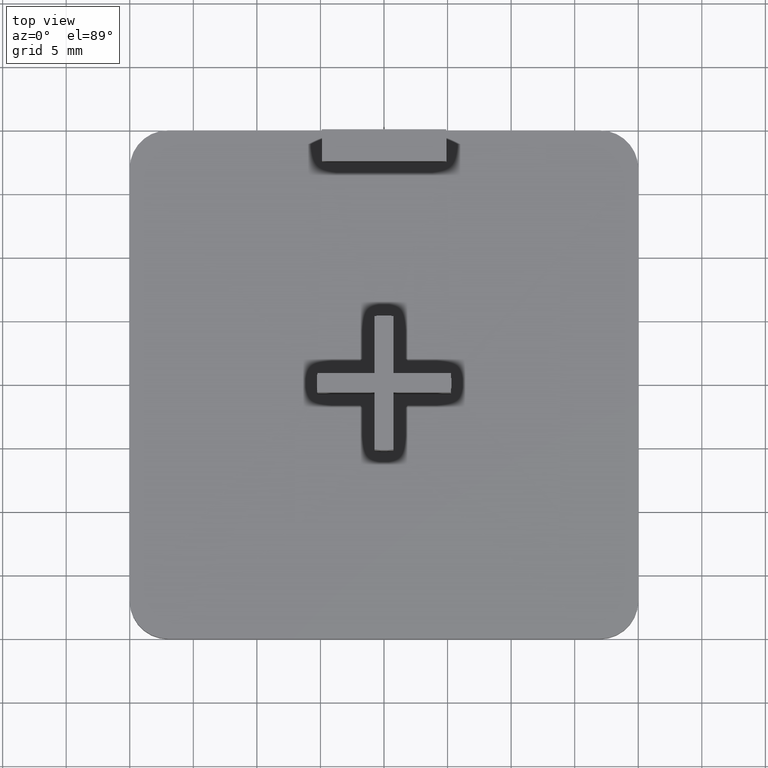
[diagram: clean part render]
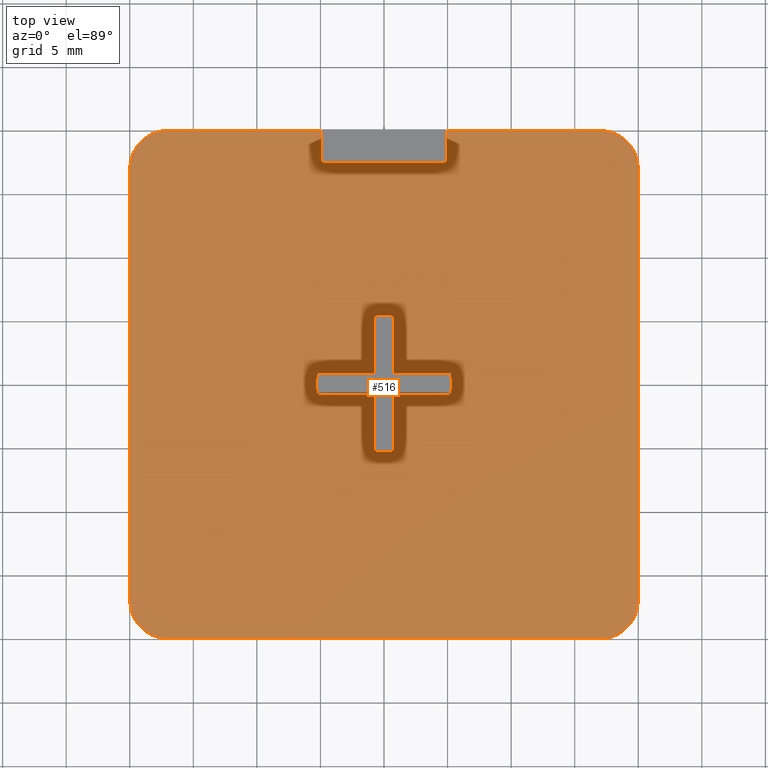
[diagram: same view with one face highlighted and labeled with its STEP entity id]
A machine part, top view. The second image highlights one B-rep face of the part: STEP entity #516.
In plain terms, the highlighted planar face has unit normal (0, 0, 1).
Its self-contained STEP definition (entity closure, byte-faithful):
#15=FACE_BOUND('',#94,.T.);
#16=CIRCLE('',#521,5.3);
#18=CIRCLE('',#526,5.3);
#20=CIRCLE('',#531,5.29999999999997);
#22=CIRCLE('',#536,5.3);
#28=CIRCLE('',#551,3.00000000000001);
#29=CIRCLE('',#554,3.);
#30=CIRCLE('',#557,3.);
#31=CIRCLE('',#560,3.00000000000001);
#66=FACE_OUTER_BOUND('',#93,.T.);
#93=EDGE_LOOP('',(#447,#448,#449,#450,#451,#452,#453,#454,#455,#456,#457,
#458));
#94=EDGE_LOOP('',(#459,#460,#461,#462,#463,#464,#465,#466,#467,#468,#469,
#470));
#95=LINE('',#710,#151);
#100=LINE('',#724,#156);
#103=LINE('',#730,#159);
#107=LINE('',#742,#163);
#110=LINE('',#748,#166);
#114=LINE('',#760,#170);
#117=LINE('',#766,#173);
#121=LINE('',#777,#177);
#123=LINE('',#783,#179);
#127=LINE('',#791,#183);
#130=LINE('',#797,#186);
#136=LINE('',#809,#192);
#137=LINE('',#811,#193);
#143=LINE('',#833,#199);
#146=LINE('',#841,#202);
#149=LINE('',#849,#205);
#151=VECTOR('',#566,4.49666560779321);
#156=VECTOR('',#579,4.49666560779319);
#159=VECTOR('',#584,4.49666560779321);
#163=VECTOR('',#596,4.4966656077932);
#166=VECTOR('',#601,4.49666560779318);
#170=VECTOR('',#613,4.49666560779319);
#173=VECTOR('',#618,4.49666560779321);
#177=VECTOR('',#630,4.49666560779321);
#179=VECTOR('',#636,9.8);
#183=VECTOR('',#642,2.50000000000001);
#186=VECTOR('',#647,2.50000000000001);
#192=VECTOR('',#657,12.1);
#193=VECTOR('',#658,12.1);
#199=VECTOR('',#680,34.);
#202=VECTOR('',#689,34.);
#205=VECTOR('',#698,34.);
#207=VERTEX_POINT('',#708);
#208=VERTEX_POINT('',#709);
#211=VERTEX_POINT('',#717);
#213=VERTEX_POINT('',#723);
#215=VERTEX_POINT('',#729);
#217=VERTEX_POINT('',#735);
#219=VERTEX_POINT('',#741);
#221=VERTEX_POINT('',#747);
#223=VERTEX_POINT('',#753);
#225=VERTEX_POINT('',#759);
#227=VERTEX_POINT('',#765);
#229=VERTEX_POINT('',#771);
#231=VERTEX_POINT('',#781);
#232=VERTEX_POINT('',#782);
#235=VERTEX_POINT('',#790);
#237=VERTEX_POINT('',#796);
#241=VERTEX_POINT('',#807);
#242=VERTEX_POINT('',#810);
#249=VERTEX_POINT('',#828);
#250=VERTEX_POINT('',#832);
#251=VERTEX_POINT('',#836);
#252=VERTEX_POINT('',#840);
#253=VERTEX_POINT('',#844);
#254=VERTEX_POINT('',#848);
#255=EDGE_CURVE('',#207,#208,#95,.T.);
#259=EDGE_CURVE('',#211,#207,#16,.T.);
#262=EDGE_CURVE('',#213,#211,#100,.T.);
#265=EDGE_CURVE('',#215,#213,#103,.T.);
#268=EDGE_CURVE('',#217,#215,#18,.T.);
#271=EDGE_CURVE('',#219,#217,#107,.T.);
#274=EDGE_CURVE('',#208,#221,#110,.T.);
#277=EDGE_CURVE('',#221,#223,#20,.T.);
#280=EDGE_CURVE('',#223,#225,#114,.T.);
#283=EDGE_CURVE('',#225,#227,#117,.T.);
#286=EDGE_CURVE('',#227,#229,#22,.T.);
#289=EDGE_CURVE('',#229,#219,#121,.T.);
#291=EDGE_CURVE('',#231,#232,#123,.T.);
#295=EDGE_CURVE('',#235,#231,#127,.T.);
#298=EDGE_CURVE('',#232,#237,#130,.T.);
#304=EDGE_CURVE('',#237,#241,#136,.T.);
#305=EDGE_CURVE('',#242,#235,#137,.T.);
#314=EDGE_CURVE('',#249,#242,#28,.T.);
#316=EDGE_CURVE('',#250,#249,#143,.T.);
#318=EDGE_CURVE('',#251,#250,#29,.T.);
#320=EDGE_CURVE('',#252,#251,#146,.T.);
#322=EDGE_CURVE('',#253,#252,#30,.T.);
#324=EDGE_CURVE('',#254,#253,#149,.T.);
#326=EDGE_CURVE('',#241,#254,#31,.T.);
#447=ORIENTED_EDGE('',*,*,#298,.T.);
#448=ORIENTED_EDGE('',*,*,#304,.T.);
#449=ORIENTED_EDGE('',*,*,#326,.T.);
#450=ORIENTED_EDGE('',*,*,#324,.T.);
#451=ORIENTED_EDGE('',*,*,#322,.T.);
#452=ORIENTED_EDGE('',*,*,#320,.T.);
#453=ORIENTED_EDGE('',*,*,#318,.T.);
#454=ORIENTED_EDGE('',*,*,#316,.T.);
#455=ORIENTED_EDGE('',*,*,#314,.T.);
#456=ORIENTED_EDGE('',*,*,#305,.T.);
#457=ORIENTED_EDGE('',*,*,#295,.T.);
#458=ORIENTED_EDGE('',*,*,#291,.T.);
#459=ORIENTED_EDGE('',*,*,#271,.T.);
#460=ORIENTED_EDGE('',*,*,#268,.T.);
#461=ORIENTED_EDGE('',*,*,#265,.T.);
#462=ORIENTED_EDGE('',*,*,#262,.T.);
#463=ORIENTED_EDGE('',*,*,#259,.T.);
#464=ORIENTED_EDGE('',*,*,#255,.T.);
#465=ORIENTED_EDGE('',*,*,#274,.T.);
#466=ORIENTED_EDGE('',*,*,#277,.T.);
#467=ORIENTED_EDGE('',*,*,#280,.T.);
#468=ORIENTED_EDGE('',*,*,#283,.T.);
#469=ORIENTED_EDGE('',*,*,#286,.T.);
#470=ORIENTED_EDGE('',*,*,#289,.T.);
#489=PLANE('',#561);
#516=ADVANCED_FACE('',(#66,#15),#489,.T.);
#521=AXIS2_PLACEMENT_3D('',#718,#572,#573);
#526=AXIS2_PLACEMENT_3D('',#736,#589,#590);
#531=AXIS2_PLACEMENT_3D('',#754,#606,#607);
#536=AXIS2_PLACEMENT_3D('',#772,#623,#624);
#551=AXIS2_PLACEMENT_3D('',#829,#675,#676);
#554=AXIS2_PLACEMENT_3D('',#837,#684,#685);
#557=AXIS2_PLACEMENT_3D('',#845,#693,#694);
#560=AXIS2_PLACEMENT_3D('',#852,#702,#703);
#561=AXIS2_PLACEMENT_3D('',#853,#704,#705);
#566=DIRECTION('',(-1.,-2.61713124512323E-14,0.));
#572=DIRECTION('center_axis',(0.,0.,-1.));
#573=DIRECTION('ref_axis',(0.989936907130796,-0.141509433962242,0.));
#579=DIRECTION('',(1.,0.,0.));
#584=DIRECTION('',(2.96279008881876E-15,-1.,0.));
#589=DIRECTION('center_axis',(0.,0.,-1.));
#590=DIRECTION('ref_axis',(0.141509433962262,0.989936907130793,0.));
#596=DIRECTION('',(0.,1.,0.));
#601=DIRECTION('',(0.,-1.,0.));
#606=DIRECTION('center_axis',(0.,0.,-1.));
#607=DIRECTION('ref_axis',(-0.141509433962248,-0.989936907130795,0.));
#613=DIRECTION('',(-1.97519339254584E-14,1.,0.));
#618=DIRECTION('',(-1.,0.,0.));
#623=DIRECTION('center_axis',(0.,0.,-1.));
#624=DIRECTION('ref_axis',(-0.989936907130793,0.141509433962264,0.));
#630=DIRECTION('',(1.,0.,0.));
#636=DIRECTION('',(-1.,0.,0.));
#642=DIRECTION('',(5.32907051820073E-15,-1.,0.));
#647=DIRECTION('',(0.,1.,0.));
#657=DIRECTION('',(-1.,0.,0.));
#658=DIRECTION('',(-1.,0.,0.));
#675=DIRECTION('center_axis',(0.,0.,1.));
#676=DIRECTION('ref_axis',(1.,0.,0.));
#680=DIRECTION('',(2.61228946970625E-16,1.,0.));
#684=DIRECTION('center_axis',(0.,0.,1.));
#685=DIRECTION('ref_axis',(1.77635683940025E-14,-1.,0.));
#689=DIRECTION('',(1.,0.,0.));
#693=DIRECTION('center_axis',(0.,0.,1.));
#694=DIRECTION('ref_axis',(-1.,0.,0.));
#698=DIRECTION('',(3.91843420455938E-16,-1.,0.));
#702=DIRECTION('center_axis',(0.,0.,1.));
#703=DIRECTION('ref_axis',(0.,1.,0.));
#704=DIRECTION('center_axis',(0.,0.,1.));
#705=DIRECTION('ref_axis',(1.,0.,0.));
#708=CARTESIAN_POINT('',(5.24666560779321,-0.74999999999988,2.5));
#709=CARTESIAN_POINT('',(0.750000000000002,-0.749999999999997,2.5));
#710=CARTESIAN_POINT('',(0.375000000000252,-0.750000000000007,2.5));
#717=CARTESIAN_POINT('',(5.24666560779319,0.750000000000002,2.5));
#718=CARTESIAN_POINT('Origin',(0.,0.,2.5));
#723=CARTESIAN_POINT('',(0.750000000000002,0.750000000000002,2.5));
#724=CARTESIAN_POINT('',(2.62333280389659,0.750000000000002,2.5));
#729=CARTESIAN_POINT('',(0.749999999999988,5.24666560779321,2.5));
#730=CARTESIAN_POINT('',(0.749999999999975,9.75000000000001,2.5));
#735=CARTESIAN_POINT('',(-0.749999999999997,5.24666560779321,2.5));
#736=CARTESIAN_POINT('Origin',(0.,0.,2.5));
#741=CARTESIAN_POINT('',(-0.749999999999997,0.750000000000002,2.5));
#742=CARTESIAN_POINT('',(-0.749999999999997,11.9983328038966,2.5));
#747=CARTESIAN_POINT('',(0.750000000000002,-5.24666560779318,2.5));
#748=CARTESIAN_POINT('',(0.750000000000002,6.75166719610342,2.5));
#753=CARTESIAN_POINT('',(-0.749999999999909,-5.24666560779319,2.5));
#754=CARTESIAN_POINT('Origin',(0.,0.,2.5));
#759=CARTESIAN_POINT('',(-0.749999999999997,-0.749999999999997,2.5));
#760=CARTESIAN_POINT('',(-0.75000000000019,9.00000000000001,2.5));
#765=CARTESIAN_POINT('',(-5.24666560779321,-0.749999999999997,2.5));
#766=CARTESIAN_POINT('',(-2.62333280389661,-0.749999999999997,2.5));
#771=CARTESIAN_POINT('',(-5.24666560779321,0.750000000000002,2.5));
#772=CARTESIAN_POINT('Origin',(0.,0.,2.5));
#777=CARTESIAN_POINT('',(-0.375000000000003,0.750000000000002,2.5));
#781=CARTESIAN_POINT('',(4.89999999999999,17.5,2.5));
#782=CARTESIAN_POINT('',(-4.9,17.5,2.5));
#783=CARTESIAN_POINT('',(-2.45000000000001,17.5,2.5));
#790=CARTESIAN_POINT('',(4.89999999999998,20.,2.5));
#791=CARTESIAN_POINT('',(4.89999999999999,18.125,2.5));
#796=CARTESIAN_POINT('',(-4.9,20.,2.5));
#797=CARTESIAN_POINT('',(-4.9,19.375,2.5));
#807=CARTESIAN_POINT('',(-17.,20.,2.5));
#809=CARTESIAN_POINT('',(17.,20.,2.5));
#810=CARTESIAN_POINT('',(17.,20.,2.5));
#811=CARTESIAN_POINT('',(17.,20.,2.5));
#828=CARTESIAN_POINT('',(20.,17.,2.5));
#829=CARTESIAN_POINT('Origin',(17.,17.,2.5));
#832=CARTESIAN_POINT('',(20.,-17.,2.5));
#833=CARTESIAN_POINT('',(20.,-17.,2.5));
#836=CARTESIAN_POINT('',(17.,-20.,2.5));
#837=CARTESIAN_POINT('Origin',(17.,-17.,2.5));
#840=CARTESIAN_POINT('',(-17.,-20.,2.5));
#841=CARTESIAN_POINT('',(-17.,-20.,2.5));
#844=CARTESIAN_POINT('',(-20.,-17.,2.5));
#845=CARTESIAN_POINT('Origin',(-17.,-17.,2.5));
#848=CARTESIAN_POINT('',(-20.,17.,2.5));
#849=CARTESIAN_POINT('',(-20.,17.,2.5));
#852=CARTESIAN_POINT('Origin',(-17.,17.,2.5));
#853=CARTESIAN_POINT('Origin',(-8.88178419700125E-15,18.75,2.5));